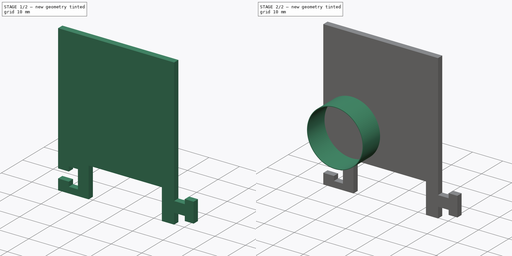
[diagram: build sequence overview — one tinted view per stage of 2, left to right]
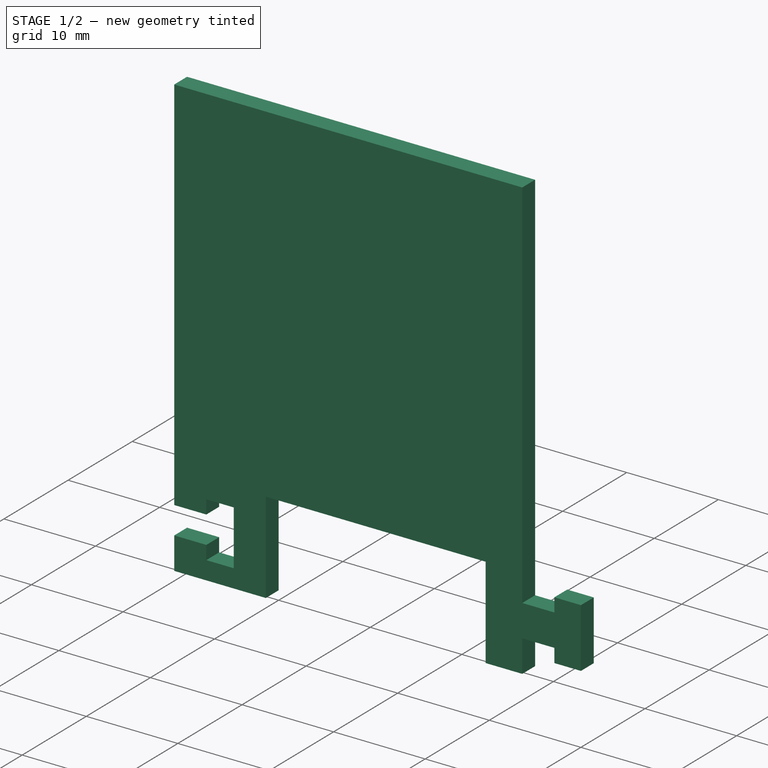
[diagram: stage 1 of 2 — iso view after this stage's code; geometry added in this stage tinted green]
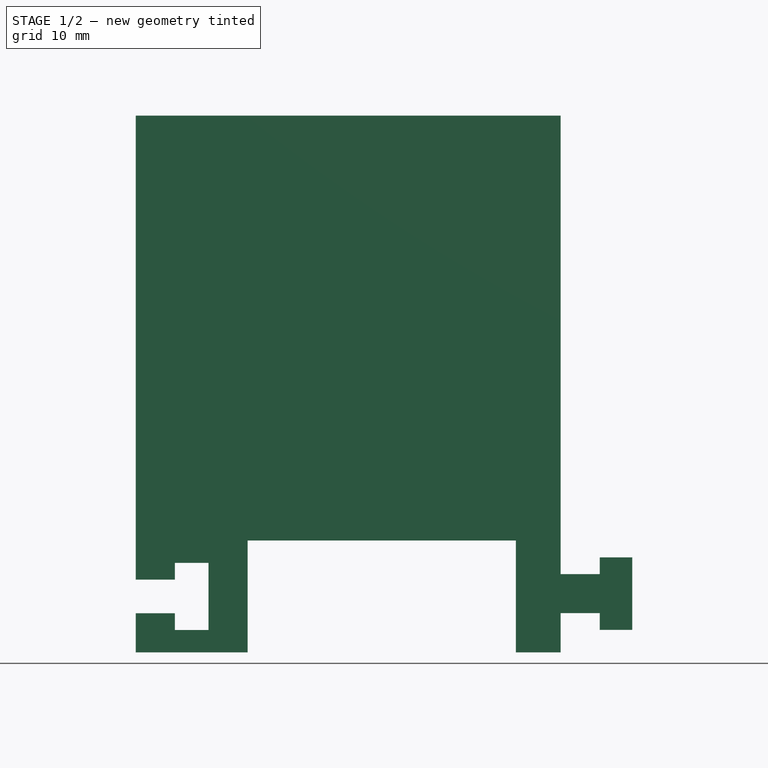
[diagram: stage 1 of 2 — front view after this stage's code; geometry added in this stage tinted green]
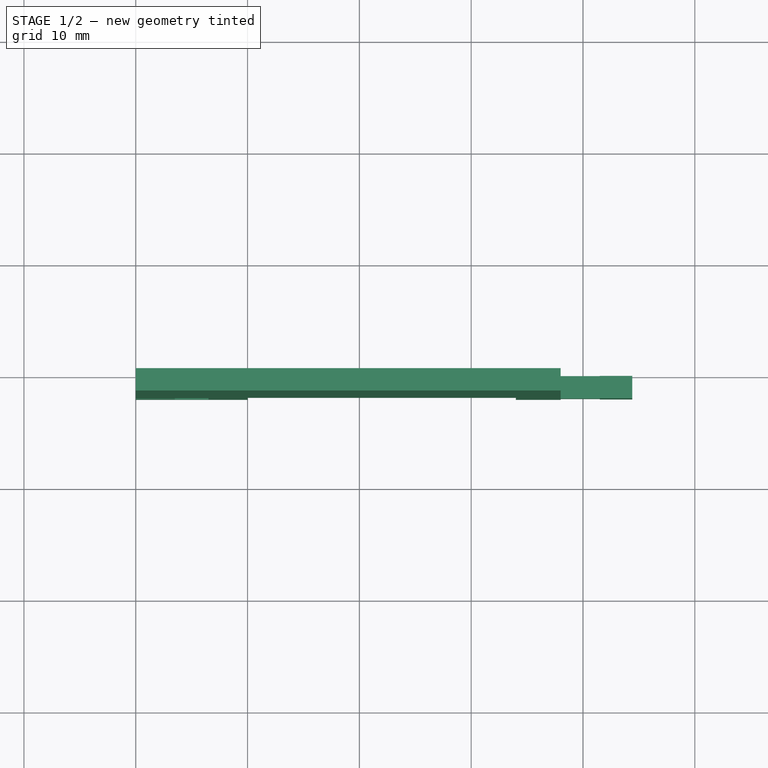
[diagram: stage 1 of 2 — top view after this stage's code; geometry added in this stage tinted green]
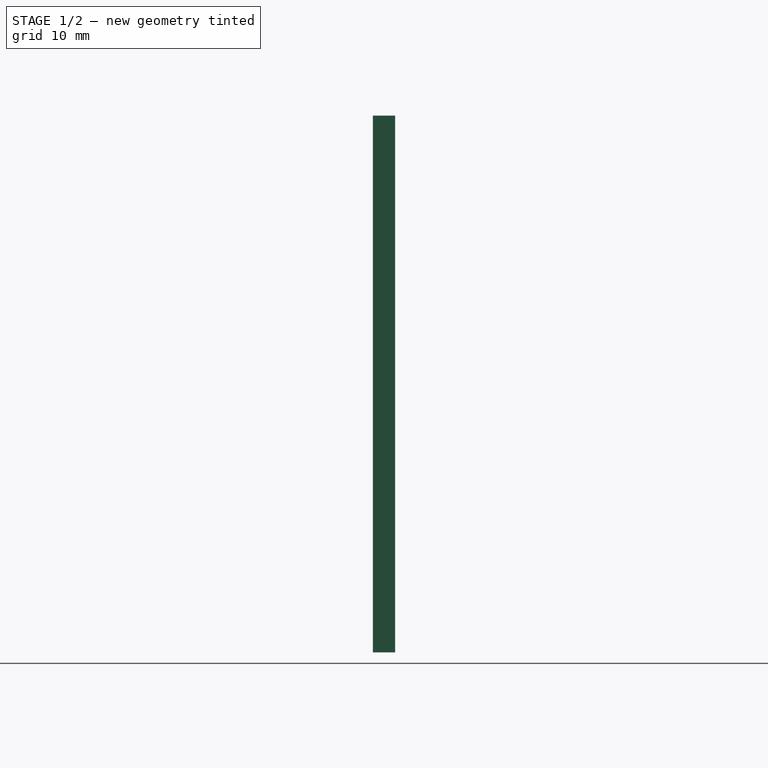
[diagram: stage 1 of 2 — right view after this stage's code; geometry added in this stage tinted green]
FCSTD DOCUMENT  (FreeCAD 0.19R24276 (Git))
Label: 4xCapTrayjgh
License: All rights reserved
LicenseURL: http://en.wikipedia.org/wiki/All_rights_reserved
objects: Sketcher::SketchObject×2, PartDesign::Pad×2, PartDesign::Body×1
note: 7 computed .brp shape members not serialized (recipe doc carries the construction recipe); baked Part::Feature solids carry a one-line shape summary decoded from their .brp

FEATURE [Sketcher::SketchObject] Sketch
  FullyConstrained = true
  MapMode = 5
  Placement = pos=(0,0,0) rot=(1,0,0;1.5708rad)
  Support = -> [XZ_Plane,XY_Plane]
  sketch-geometry (26):
    g0: LineSegment StartX=10 StartY=0 StartZ=0 EndX=10 EndY=-10 EndZ=0
    g1: LineSegment StartX=10 StartY=-10 StartZ=0 EndX=0 EndY=-10 EndZ=0
    g2: LineSegment StartX=0 StartY=0 StartZ=0 EndX=0 EndY=-3.5 EndZ=0
    g3: LineSegment StartX=0 StartY=-10 StartZ=0 EndX=0 EndY=-6.5 EndZ=0
    g4: LineSegment StartX=0 StartY=-3.5 StartZ=0 EndX=3.5 EndY=-3.5 EndZ=0
    g5: LineSegment StartX=0 StartY=-6.5 StartZ=0 EndX=3.5 EndY=-6.5 EndZ=0
    g6: LineSegment StartX=3.5 StartY=-3.5 StartZ=0 EndX=3.5 EndY=-2 EndZ=0
    g7: LineSegment StartX=3.5 StartY=-2 StartZ=0 EndX=6.5 EndY=-2 EndZ=0
    g8: LineSegment StartX=6.5 StartY=-2 StartZ=0 EndX=6.5 EndY=-8 EndZ=0
    g9: LineSegment StartX=6.5 StartY=-8 StartZ=0 EndX=3.5 EndY=-8 EndZ=0
    g10: LineSegment StartX=3.5 StartY=-8 StartZ=0 EndX=3.5 EndY=-6.5 EndZ=0
    g11: LineSegment StartX=34 StartY=0 StartZ=0 EndX=34 EndY=-10 EndZ=0
    g12: LineSegment StartX=34 StartY=-10 StartZ=0 EndX=38 EndY=-10 EndZ=0
    g13: LineSegment StartX=38 StartY=-10 StartZ=0 EndX=38 EndY=-6.495 EndZ=0
    g14: LineSegment StartX=38 StartY=-6.495 StartZ=0 EndX=41.505 EndY=-6.495 EndZ=0
    g15: LineSegment StartX=41.505 StartY=-6.495 StartZ=0 EndX=41.505 EndY=-7.995 EndZ=0
    g16: LineSegment StartX=41.505 StartY=-7.995 StartZ=0 EndX=44.405 EndY=-7.995 EndZ=0
    g17: LineSegment StartX=44.405 StartY=-7.995 StartZ=0 EndX=44.405 EndY=-1.505 EndZ=0
    g18: LineSegment StartX=44.405 StartY=-1.505 StartZ=0 EndX=41.505 EndY=-1.505 EndZ=0
    g19: LineSegment StartX=41.505 StartY=-1.505 StartZ=0 EndX=41.505 EndY=-3.005 EndZ=0
    g20: LineSegment StartX=41.505 StartY=-3.005 StartZ=0 EndX=38 EndY=-3.005 EndZ=0
    g21: LineSegment StartX=38 StartY=-3.005 StartZ=0 EndX=38 EndY=0.5 EndZ=0
    g22: LineSegment StartX=10 StartY=0 StartZ=0 EndX=34 EndY=0 EndZ=0
    g23: LineSegment StartX=0 StartY=0 StartZ=0 EndX=0 EndY=38 EndZ=0
    g24: LineSegment StartX=0 StartY=38 StartZ=0 EndX=38 EndY=38 EndZ=0
    g25: LineSegment StartX=38 StartY=38 StartZ=0 EndX=38 EndY=0.5 EndZ=0
  constraints (77):
    c: Vertical(g0)
    c: DistanceY(g0,g0) = 10
    c: Coincident(g1,g0)
    c: PointOnObject(g1,g-2)
    c: Horizontal(g1)
    c: PointOnObject(g2,g-2)
    c: DistanceY(g2,g2) = 3.5
    c: Coincident(g3,g1)
    c: PointOnObject(g3,g-2)
    c: DistanceY(g3) = -6.5
    c: Coincident(g4,g2)
    c: Horizontal(g4)
    c: DistanceX(g4,g4) = 3.5
    c: Coincident(g5,g3)
    c: Horizontal(g5)
    c: DistanceX(g5,g5) = 3.5
    c: Coincident(g4,g6)
    c: Vertical(g6)
    c: Coincident(g6,g7)
    c: Horizontal(g7)
    c: Coincident(g7,g8)
    c: Vertical(g8)
    c: Coincident(g8,g9)
    c: Horizontal(g9)
    c: Coincident(g9,g10)
    c: Coincident(g10,g5)
    c: Vertical(g10)
    c: DistanceY(g6,g6) = 1.5
    c: DistanceY(g10,g10) = 1.5
    c: DistanceX(g7,g7) = 3
    c: Vertical(g11)
    c: Coincident(g11,g12)
    c: Horizontal(g12)
    c: Coincident(g12,g13)
    c: Vertical(g13)
    c: Coincident(g13,g14)
    c: Horizontal(g14)
    c: Coincident(g14,g15)
    c: Vertical(g15)
    c: Coincident(g15,g16)
    c: Horizontal(g16)
    c: Coincident(g16,g17)
    c: Vertical(g17)
    c: Coincident(g17,g18)
    c: Horizontal(g18)
    c: Coincident(g18,g19)
    c: Vertical(g19)
    c: Coincident(g19,g20)
    c: Coincident(g20,g21)
    c: Vertical(g21)
    c: Horizontal(g20)
    c: DistanceY(g11,g11) = 10
    c: DistanceY(g21,g21) = 3.505
    c: DistanceY(g13,g13) = 3.505
    c: DistanceX(g20,g20) = 3.505
    c: DistanceX(g14,g14) = 3.505
    c: DistanceX(g11) = 34
    c: DistanceX(g12,g12) = 4
    c: DistanceY(g15,g15) = 1.5
    c: DistanceY(g19,g19) = 1.5
    c: DistanceX(g18,g18) = 2.9
    c: Coincident(g22,g0)
    c: Coincident(g22,g11)
    c: Horizontal(g22)
    c: DistanceX(g22,g22) = 24
    c: Coincident(g2,g23)
    c: PointOnObject(g23,g-2)
    c: Coincident(g23,g24)
    c: Horizontal(g24)
    c: Coincident(g24,g25)
    c: Coincident(g25,g21)
    c: Vertical(g25)
    c: DistanceY(g23,g23) = 38
    c: DistanceX(g24,g24) = 38
    c: DistanceY(g25,g25) = 37.5
    c: Coincident(g2,g-1)
    c: DistanceY(g3,g3) = 3.5
FEATURE [PartDesign::Pad] Pad
  Direction = (1,1,1)
  Length = 2
  Length2 = 100
  Placement = pos=(0,0,0) rot=(1,0,0;1.5708rad)
  Profile = -> Sketch
  Type = 0
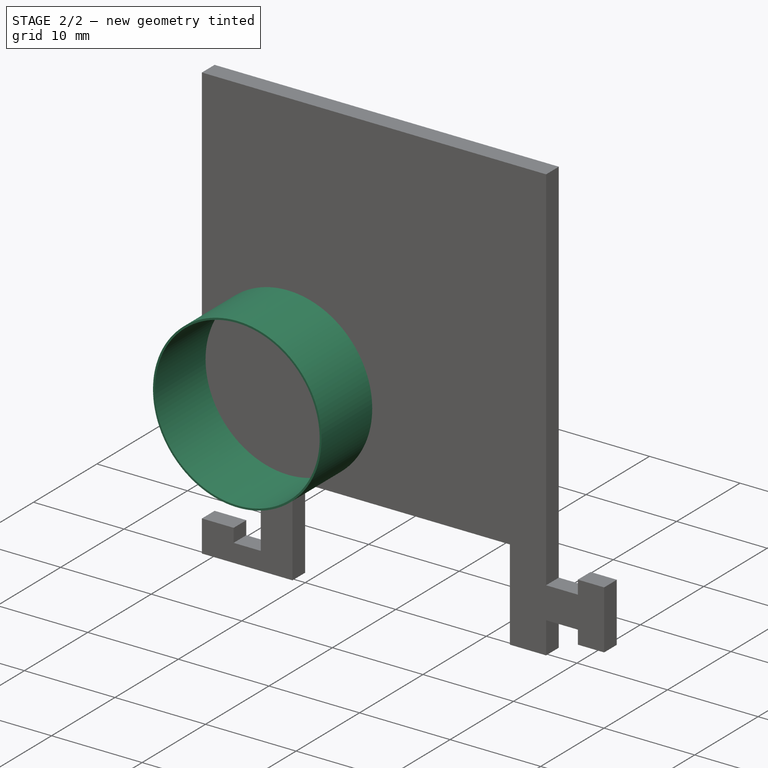
[diagram: stage 2 of 2 — iso view after this stage's code; geometry added in this stage tinted green]
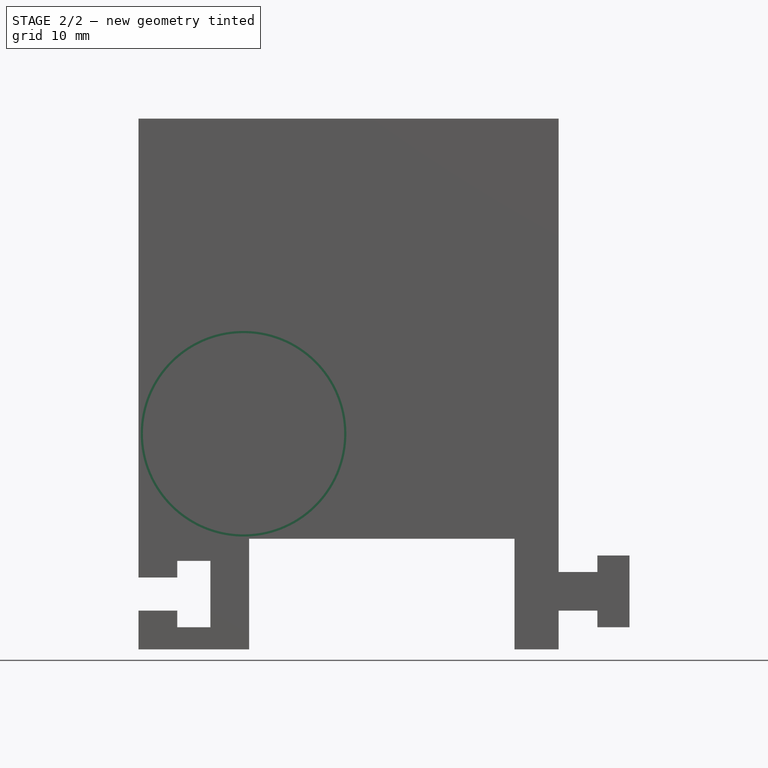
[diagram: stage 2 of 2 — front view after this stage's code; geometry added in this stage tinted green]
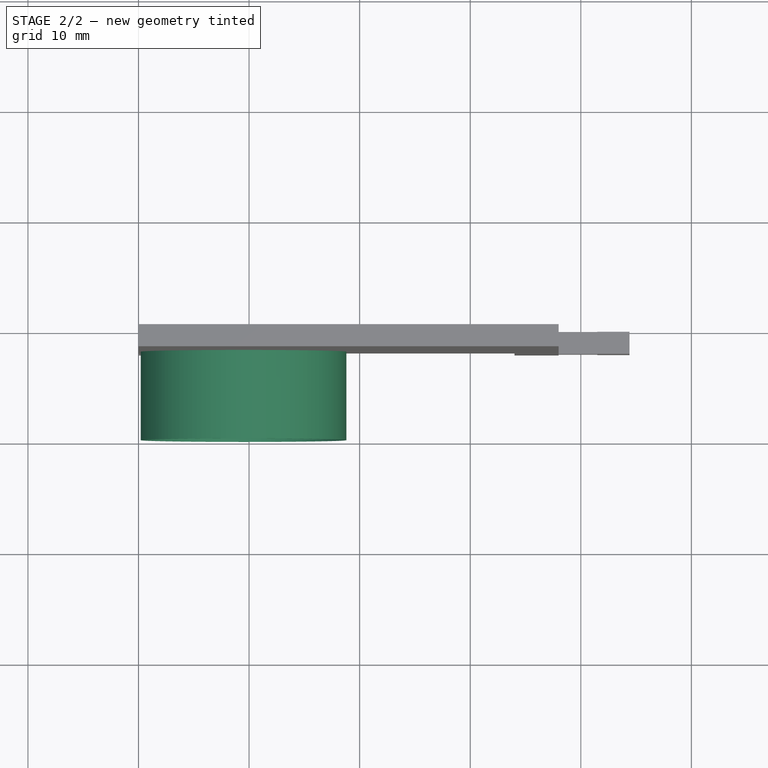
[diagram: stage 2 of 2 — top view after this stage's code; geometry added in this stage tinted green]
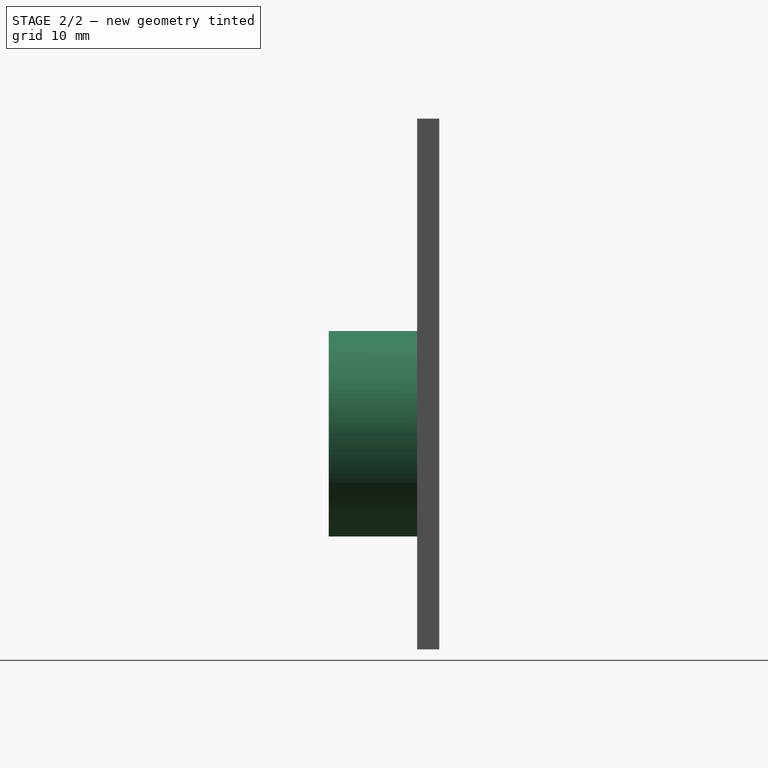
[diagram: stage 2 of 2 — right view after this stage's code; geometry added in this stage tinted green]
FEATURE [Sketcher::SketchObject] Sketch001
  FullyConstrained = true
  MapMode = 5
  Placement = pos=(0,-2,7e-16) rot=(1,0,0;1.5708rad)
  Support = -> [Pad]
  sketch-geometry (3):
    g0: GeomPoint X=9.5 Y=9.5 Z=0
    g1: Circle CenterX=9.5 CenterY=9.5 CenterZ=0 NormalX=0 NormalY=0 NormalZ=1 AngleXU=0 Radius=9.1
    g2: Circle CenterX=9.5 CenterY=9.5 CenterZ=0 NormalX=0 NormalY=0 NormalZ=1 AngleXU=0 Radius=9.3
  constraints (6):
    c: DistanceY(g0) = 9.5
    c: DistanceX(g0) = 9.5
    c: Coincident(g1,g0)
    c: Coincident(g2,g1)
    c: Radius(g2) = 9.3
    c: Radius(g1) = 9.1
FEATURE [PartDesign::Pad] Pad001
  BaseFeature = -> Pad
  Direction = (1,1,1)
  Length = 8
  Length2 = 100
  Placement = pos=(0,0,0) rot=(1,0,0;1.5708rad)
  Profile = -> Sketch001
  Type = 0
FEATURE [PartDesign::Body] Body
  Group = -> [Sketch,Pad,Sketch001,Pad001]
  Origin = -> Origin
  Tip = -> Pad001
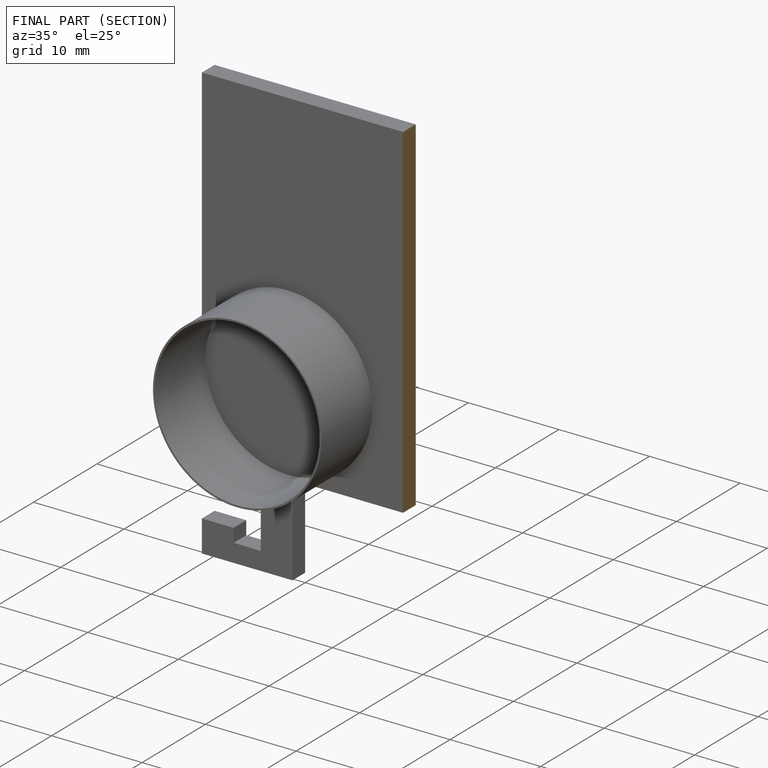
[diagram: finished part — half-section view (interior)]
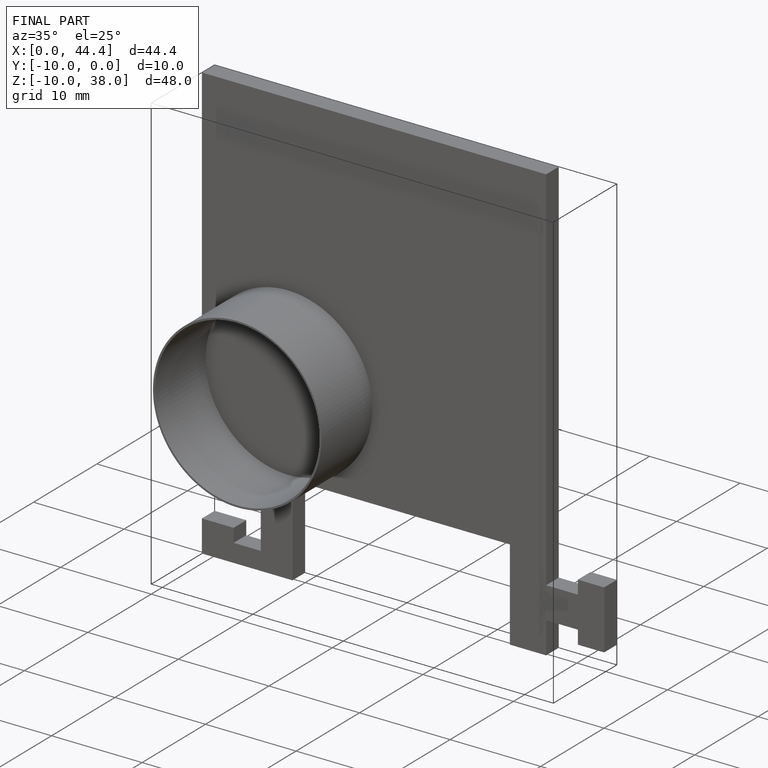
[diagram: finished part — iso view with bounding-box wireframe]
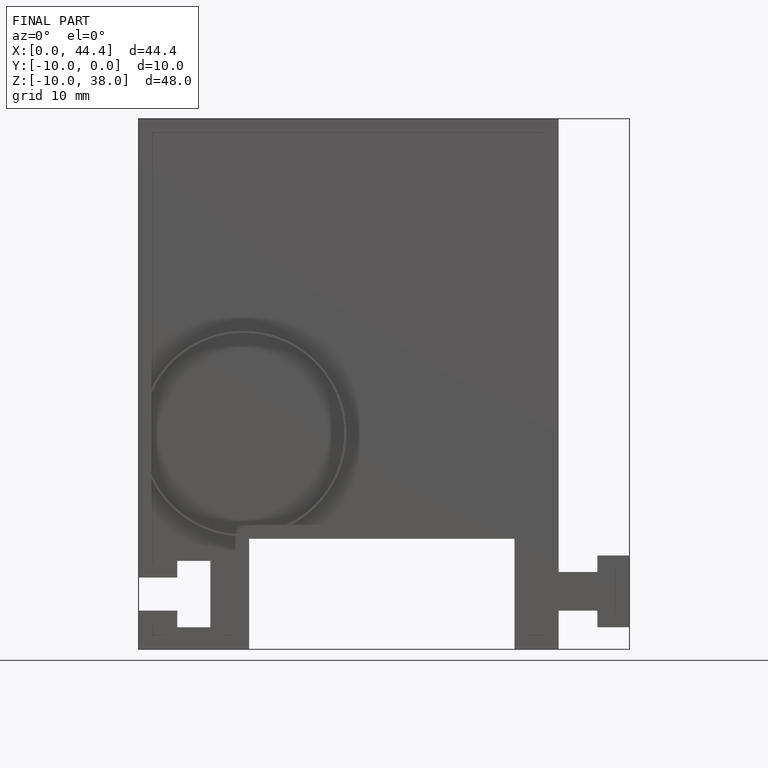
[diagram: finished part — front view with bounding-box wireframe]
